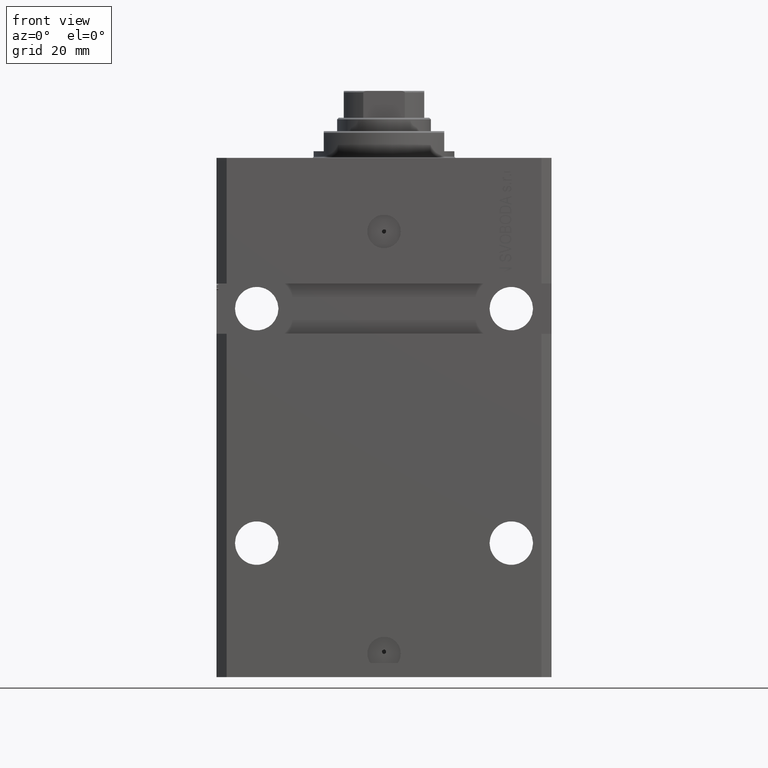
[diagram: clean part render]
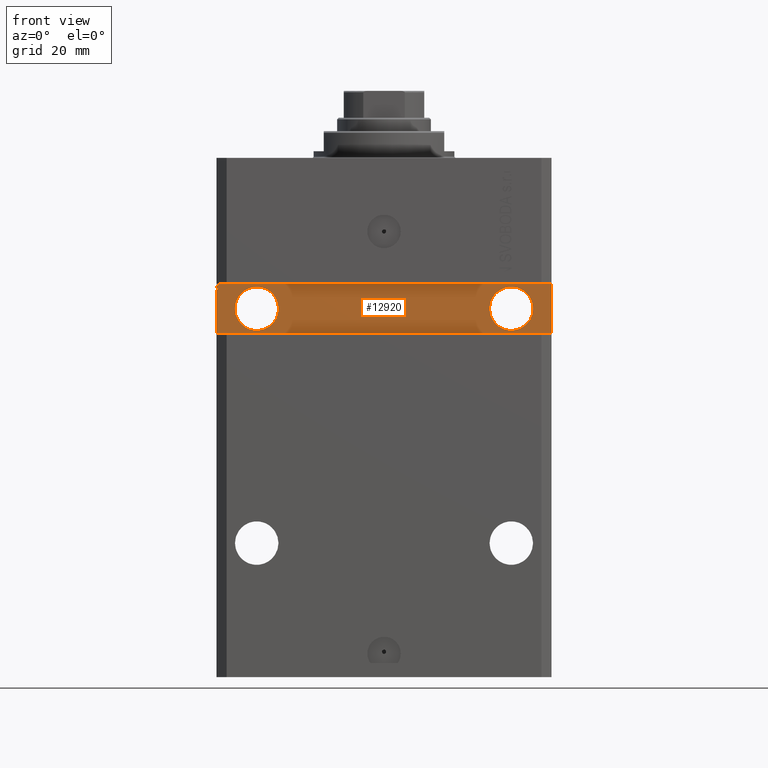
[diagram: same view with one face highlighted and labeled with its STEP entity id]
A machine part, front view. The second image highlights one B-rep face of the part: STEP entity #12920.
In plain terms, the highlighted planar face has unit normal (0, -1, 0).
Its self-contained STEP definition (entity closure, byte-faithful):
#872 = CARTESIAN_POINT ( 'NONE',  ( -37.99999999999998579, -32.50000000000000711, -45.00000000000000711 ) ) ;
#1187 = DIRECTION ( 'NONE',  ( -1.000000000000000000, -0.000000000000000000, -0.000000000000000000 ) ) ;
#1353 = CARTESIAN_POINT ( 'NONE',  ( -50.00000000000002842, -32.50000000000000711, -52.50000000000000000 ) ) ;
#2362 = VERTEX_POINT ( 'NONE', #12298 ) ;
#2487 = DIRECTION ( 'NONE',  ( 0.000000000000000000, 0.000000000000000000, 1.000000000000000000 ) ) ;
#2569 = CARTESIAN_POINT ( 'NONE',  ( -49.49999999999977973, -32.50000000000000711, -38.87066337907741342 ) ) ;
#2730 = VECTOR ( 'NONE', #25399, 1000.000000000000000 ) ;
#2881 = CARTESIAN_POINT ( 'NONE',  ( -50.00000000000002842, -32.50000000000000711, -37.50000000000000711 ) ) ;
#3366 = ORIENTED_EDGE ( 'NONE', *, *, #11506, .F. ) ;
#3711 = LINE ( 'NONE', #13937, #2730 ) ;
#3914 = VERTEX_POINT ( 'NONE', #29240 ) ;
#4173 = ORIENTED_EDGE ( 'NONE', *, *, #13909, .F. ) ;
#4510 = VERTEX_POINT ( 'NONE', #36089 ) ;
#4817 = CARTESIAN_POINT ( 'NONE',  ( -37.99999999999998579, -32.50000000000000711, -45.00000000000000711 ) ) ;
#5196 = VECTOR ( 'NONE', #26267, 1000.000000000000000 ) ;
#5239 = CARTESIAN_POINT ( 'NONE',  ( 49.99999999999999289, -32.49999999999999289, -37.49999999999999289 ) ) ;
#5298 = VECTOR ( 'NONE', #13716, 1000.000000000000000 ) ;
#5486 = LINE ( 'NONE', #5722, #34310 ) ;
#5722 = CARTESIAN_POINT ( 'NONE',  ( -49.50000000000016342, -32.50000000000000711, -39.86910993535713743 ) ) ;
#6314 = LINE ( 'NONE', #2881, #34869 ) ;
#6358 = ORIENTED_EDGE ( 'NONE', *, *, #45772, .T. ) ;
#7110 = CARTESIAN_POINT ( 'NONE',  ( 49.99999999999999289, -32.49999999999999289, -37.49999999999999289 ) ) ;
#7144 = CARTESIAN_POINT ( 'NONE',  ( -49.50000000000001421, -32.50000000000000711, -39.43474002179300442 ) ) ;
#7324 = DIRECTION ( 'NONE',  ( 1.101411730780568590E-16, -1.000000000000000000, 0.000000000000000000 ) ) ;
#7466 = CARTESIAN_POINT ( 'NONE',  ( 49.99999999999999289, -32.49999999999999289, -52.49999999999998579 ) ) ;
#8071 = VECTOR ( 'NONE', #2487, 1000.000000000000000 ) ;
#9020 = AXIS2_PLACEMENT_3D ( 'NONE', #33328, #15023, #22354 ) ;
#9437 = DIRECTION ( 'NONE',  ( -1.000000000000000000, -0.000000000000000000, -0.000000000000000000 ) ) ;
#9544 = LINE ( 'NONE', #23690, #8071 ) ;
#9802 = VECTOR ( 'NONE', #34250, 1000.000000000000000 ) ;
#9940 = ORIENTED_EDGE ( 'NONE', *, *, #19452, .F. ) ;
#10172 = DIRECTION ( 'NONE',  ( 0.000000000000000000, 0.000000000000000000, -1.000000000000000000 ) ) ;
#11114 = AXIS2_PLACEMENT_3D ( 'NONE', #4817, #7324, #38216 ) ;
#11506 = EDGE_CURVE ( 'NONE', #21738, #34942, #46310, .T. ) ;
#11645 = FACE_OUTER_BOUND ( 'NONE', #33460, .T. ) ;
#12035 = CARTESIAN_POINT ( 'NONE',  ( -50.00000000000002842, -32.50000000000000711, -37.50000000000000711 ) ) ;
#12298 = CARTESIAN_POINT ( 'NONE',  ( -49.49999999999999289, -32.50000000000000711, -39.43474004052496440 ) ) ;
#12920 = ADVANCED_FACE ( 'NONE', ( #29469, #26288, #11645 ), #32886, .T. ) ;
#12992 = VECTOR ( 'NONE', #30096, 1000.000000000000000 ) ;
#13025 = VECTOR ( 'NONE', #36144, 1000.000000000000000 ) ;
#13117 = VERTEX_POINT ( 'NONE', #12035 ) ;
#13190 = VERTEX_POINT ( 'NONE', #42299 ) ;
#13350 = ORIENTED_EDGE ( 'NONE', *, *, #47068, .T. ) ;
#13716 = DIRECTION ( 'NONE',  ( 1.000000000000000000, 0.000000000000000000, 0.000000000000000000 ) ) ;
#13909 = EDGE_CURVE ( 'NONE', #44753, #23481, #26893, .T. ) ;
#13937 = CARTESIAN_POINT ( 'NONE',  ( -50.00000000000002842, -32.50000000000000711, -37.50000000000000711 ) ) ;
#14124 = ORIENTED_EDGE ( 'NONE', *, *, #39742, .T. ) ;
#14663 = VECTOR ( 'NONE', #34487, 1000.000000000000000 ) ;
#15023 = DIRECTION ( 'NONE',  ( 8.806446732139696505E-17, -1.000000000000000000, 6.162975822039154730E-33 ) ) ;
#15949 = VERTEX_POINT ( 'NONE', #7466 ) ;
#16055 = ORIENTED_EDGE ( 'NONE', *, *, #44231, .F. ) ;
#17141 = ORIENTED_EDGE ( 'NONE', *, *, #37494, .T. ) ;
#18583 = LINE ( 'NONE', #7144, #5298 ) ;
#18715 = LINE ( 'NONE', #48231, #5196 ) ;
#19452 = EDGE_CURVE ( 'NONE', #23481, #44753, #25396, .T. ) ;
#19805 = VERTEX_POINT ( 'NONE', #31032 ) ;
#20090 = LINE ( 'NONE', #5239, #9802 ) ;
#20334 = DIRECTION ( 'NONE',  ( 3.791485858024926499E-13, 5.261743621399924533E-29, 1.000000000000000000 ) ) ;
#20352 = DIRECTION ( 'NONE',  ( 1.000000000000000000, 0.000000000000000000, 0.000000000000000000 ) ) ;
#21738 = VERTEX_POINT ( 'NONE', #22710 ) ;
#22146 = EDGE_CURVE ( 'NONE', #19805, #13190, #6314, .T. ) ;
#22282 = CARTESIAN_POINT ( 'NONE',  ( 31.50000000000001421, -32.50000000000000000, -45.00000000000000000 ) ) ;
#22354 = DIRECTION ( 'NONE',  ( 1.000000000000000000, 0.000000000000000000, 0.000000000000000000 ) ) ;
#22710 = CARTESIAN_POINT ( 'NONE',  ( -44.49999999999998579, -32.50000000000000711, -45.00000000000000711 ) ) ;
#22965 = VERTEX_POINT ( 'NONE', #35078 ) ;
#23057 = VECTOR ( 'NONE', #1187, 1000.000000000000000 ) ;
#23228 = EDGE_LOOP ( 'NONE', ( #37898, #3366 ) ) ;
#23481 = VERTEX_POINT ( 'NONE', #32335 ) ;
#23690 = CARTESIAN_POINT ( 'NONE',  ( 49.99999999999999289, -32.49999999999999289, -52.49999999999998579 ) ) ;
#24064 = ORIENTED_EDGE ( 'NONE', *, *, #41414, .T. ) ;
#24410 = EDGE_CURVE ( 'NONE', #3914, #15949, #34730, .T. ) ;
#24491 = CARTESIAN_POINT ( 'NONE',  ( 38.00000000000001421, -32.50000000000000000, -45.00000000000000000 ) ) ;
#25396 = CIRCLE ( 'NONE', #31636, 6.499999999999999112 ) ;
#25399 = DIRECTION ( 'NONE',  ( 0.000000000000000000, 0.000000000000000000, -1.000000000000000000 ) ) ;
#26267 = DIRECTION ( 'NONE',  ( -1.000000000000000000, -0.000000000000000000, -0.000000000000000000 ) ) ;
#26288 = FACE_BOUND ( 'NONE', #23228, .T. ) ;
#26548 = ORIENTED_EDGE ( 'NONE', *, *, #32291, .F. ) ;
#26893 = CIRCLE ( 'NONE', #9020, 6.499999999999999112 ) ;
#29225 = DIRECTION ( 'NONE',  ( 1.000000000000000000, 1.387778780781445182E-16, 0.000000000000000000 ) ) ;
#29240 = CARTESIAN_POINT ( 'NONE',  ( -50.00000000000002842, -32.50000000000000711, -52.50000000000000000 ) ) ;
#29469 = FACE_BOUND ( 'NONE', #40897, .T. ) ;
#30096 = DIRECTION ( 'NONE',  ( 0.000000000000000000, 0.000000000000000000, -1.000000000000000000 ) ) ;
#30190 = DIRECTION ( 'NONE',  ( 1.387778780781445182E-16, -1.000000000000000000, 0.000000000000000000 ) ) ;
#31032 = CARTESIAN_POINT ( 'NONE',  ( -50.00000000000002842, -32.50000000000000711, -37.99999999999999289 ) ) ;
#31534 = AXIS2_PLACEMENT_3D ( 'NONE', #44126, #30190, #29225 ) ;
#31636 = AXIS2_PLACEMENT_3D ( 'NONE', #24491, #42324, #20352 ) ;
#32218 = CARTESIAN_POINT ( 'NONE',  ( -49.50000000000000711, -32.50000000000000711, -37.99999999999999289 ) ) ;
#32291 = EDGE_CURVE ( 'NONE', #2362, #36981, #5486, .T. ) ;
#32335 = CARTESIAN_POINT ( 'NONE',  ( 44.50000000000001421, -32.50000000000000000, -45.00000000000000000 ) ) ;
#32630 = ORIENTED_EDGE ( 'NONE', *, *, #35682, .F. ) ;
#32886 = PLANE ( 'NONE',  #31534 ) ;
#33204 = ORIENTED_EDGE ( 'NONE', *, *, #24410, .T. ) ;
#33328 = CARTESIAN_POINT ( 'NONE',  ( 38.00000000000001421, -32.50000000000000000, -45.00000000000000000 ) ) ;
#33460 = EDGE_LOOP ( 'NONE', ( #35494, #32630, #26548, #44377, #6358, #33204, #37092, #14124, #17141, #16055, #13350, #24064 ) ) ;
#33694 = VERTEX_POINT ( 'NONE', #32218 ) ;
#33800 = EDGE_CURVE ( 'NONE', #34942, #21738, #40737, .T. ) ;
#34013 = DIRECTION ( 'NONE',  ( 1.101411730780568590E-16, -1.000000000000000000, 0.000000000000000000 ) ) ;
#34250 = DIRECTION ( 'NONE',  ( -1.000000000000000000, -1.387778780781445182E-16, -1.387778780781445182E-16 ) ) ;
#34310 = VECTOR ( 'NONE', #20334, 1000.000000000000000 ) ;
#34487 = DIRECTION ( 'NONE',  ( 1.000000000000000000, 1.387778780781445182E-16, 1.387778780781445182E-16 ) ) ;
#34512 = EDGE_CURVE ( 'NONE', #15949, #40976, #9544, .T. ) ;
#34564 = LINE ( 'NONE', #35052, #23057 ) ;
#34730 = LINE ( 'NONE', #1353, #14663 ) ;
#34869 = VECTOR ( 'NONE', #10172, 1000.000000000000000 ) ;
#34942 = VERTEX_POINT ( 'NONE', #45546 ) ;
#35052 = CARTESIAN_POINT ( 'NONE',  ( -49.50000000000000711, -32.49999999999999289, -37.62144886363635976 ) ) ;
#35078 = CARTESIAN_POINT ( 'NONE',  ( -50.00000000000002842, -32.50000000000000711, -37.62144886363636687 ) ) ;
#35494 = ORIENTED_EDGE ( 'NONE', *, *, #22146, .T. ) ;
#35682 = EDGE_CURVE ( 'NONE', #36981, #13190, #42867, .T. ) ;
#36089 = CARTESIAN_POINT ( 'NONE',  ( -50.00000000000002842, -32.50000000000000711, -39.43474002179300442 ) ) ;
#36144 = DIRECTION ( 'NONE',  ( 0.000000000000000000, 0.000000000000000000, -1.000000000000000000 ) ) ;
#36981 = VERTEX_POINT ( 'NONE', #2569 ) ;
#37092 = ORIENTED_EDGE ( 'NONE', *, *, #34512, .T. ) ;
#37494 = EDGE_CURVE ( 'NONE', #13117, #22965, #3711, .T. ) ;
#37898 = ORIENTED_EDGE ( 'NONE', *, *, #33800, .F. ) ;
#38140 = LINE ( 'NONE', #42284, #12992 ) ;
#38216 = DIRECTION ( 'NONE',  ( 1.000000000000000000, 0.000000000000000000, 0.000000000000000000 ) ) ;
#39742 = EDGE_CURVE ( 'NONE', #40976, #13117, #20090, .T. ) ;
#40737 = CIRCLE ( 'NONE', #11114, 6.499999999999999112 ) ;
#40897 = EDGE_LOOP ( 'NONE', ( #9940, #4173 ) ) ;
#40908 = VERTEX_POINT ( 'NONE', #43035 ) ;
#40976 = VERTEX_POINT ( 'NONE', #7110 ) ;
#41414 = EDGE_CURVE ( 'NONE', #33694, #19805, #18715, .T. ) ;
#42284 = CARTESIAN_POINT ( 'NONE',  ( -50.00000000000002842, -32.50000000000000711, -37.50000000000000711 ) ) ;
#42299 = CARTESIAN_POINT ( 'NONE',  ( -50.00000000000002842, -32.50000000000000711, -38.87066340383893959 ) ) ;
#42324 = DIRECTION ( 'NONE',  ( 8.806446732139696505E-17, -1.000000000000000000, 6.162975822039154730E-33 ) ) ;
#42867 = LINE ( 'NONE', #43589, #45500 ) ;
#43035 = CARTESIAN_POINT ( 'NONE',  ( -49.50000000000000711, -32.50000000000000711, -37.62144886363635976 ) ) ;
#43223 = AXIS2_PLACEMENT_3D ( 'NONE', #872, #34013, #45252 ) ;
#43589 = CARTESIAN_POINT ( 'NONE',  ( -49.50000000000001421, -32.50000000000001421, -38.87066340383893959 ) ) ;
#43724 = LINE ( 'NONE', #44204, #13025 ) ;
#44126 = CARTESIAN_POINT ( 'NONE',  ( 4.616128571667024604E-15, -32.50000000000000000, 0.000000000000000000 ) ) ;
#44204 = CARTESIAN_POINT ( 'NONE',  ( -49.50000000000000711, -32.49999999999999289, -37.62144886363635976 ) ) ;
#44231 = EDGE_CURVE ( 'NONE', #40908, #22965, #34564, .T. ) ;
#44377 = ORIENTED_EDGE ( 'NONE', *, *, #47941, .F. ) ;
#44753 = VERTEX_POINT ( 'NONE', #22282 ) ;
#45252 = DIRECTION ( 'NONE',  ( 1.000000000000000000, 0.000000000000000000, 0.000000000000000000 ) ) ;
#45500 = VECTOR ( 'NONE', #9437, 1000.000000000000000 ) ;
#45546 = CARTESIAN_POINT ( 'NONE',  ( -31.49999999999998579, -32.50000000000000711, -45.00000000000000711 ) ) ;
#45772 = EDGE_CURVE ( 'NONE', #4510, #3914, #38140, .T. ) ;
#46310 = CIRCLE ( 'NONE', #43223, 6.499999999999999112 ) ;
#47068 = EDGE_CURVE ( 'NONE', #40908, #33694, #43724, .T. ) ;
#47941 = EDGE_CURVE ( 'NONE', #4510, #2362, #18583, .T. ) ;
#48231 = CARTESIAN_POINT ( 'NONE',  ( -49.50000000000000711, -32.49999999999999289, -37.99999999999999289 ) ) ;